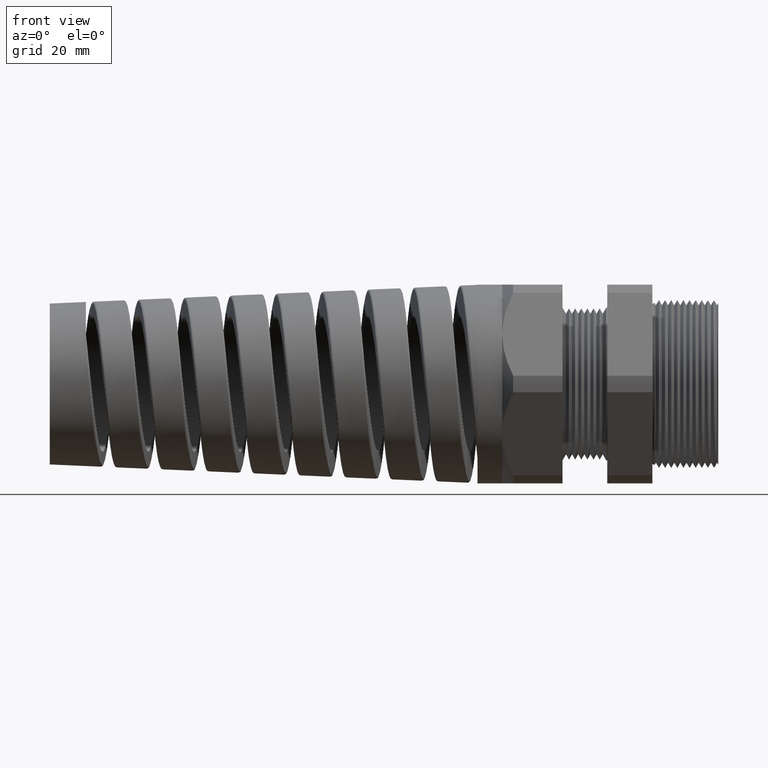
[diagram: clean part render]
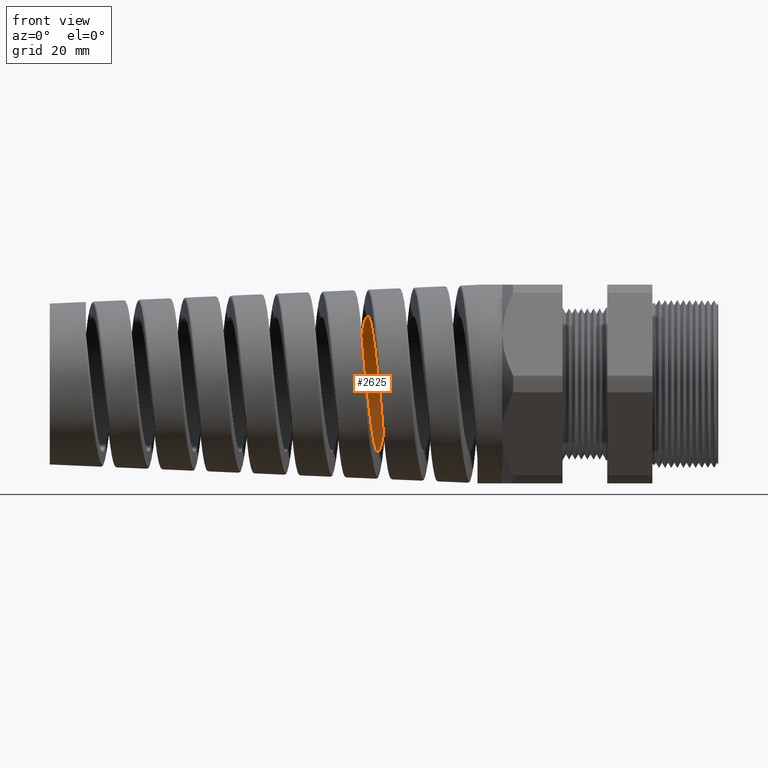
[diagram: same view with one face highlighted and labeled with its STEP entity id]
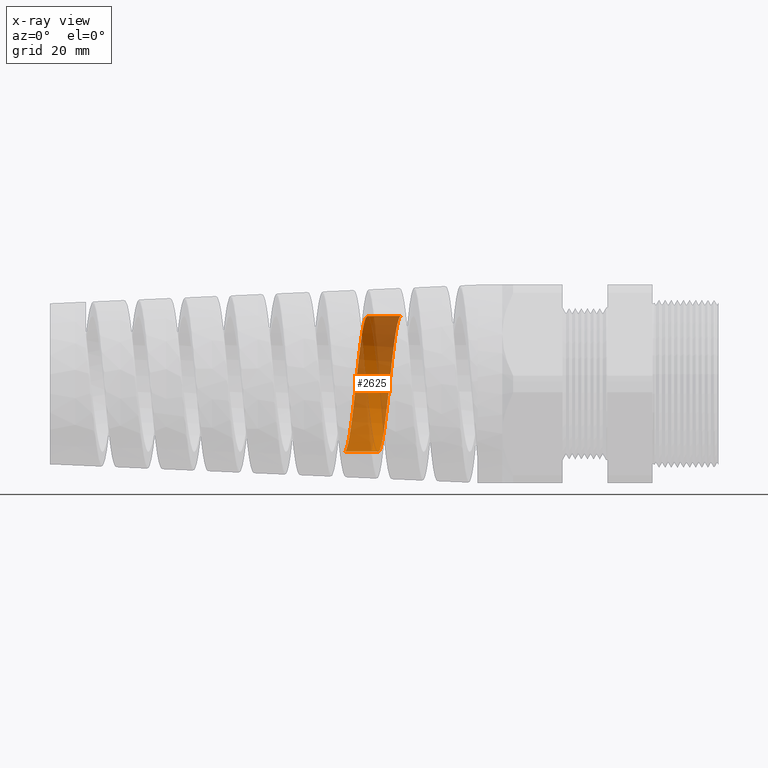
[diagram: x-ray of the same camera — body ghosted, the highlighted face saturated]
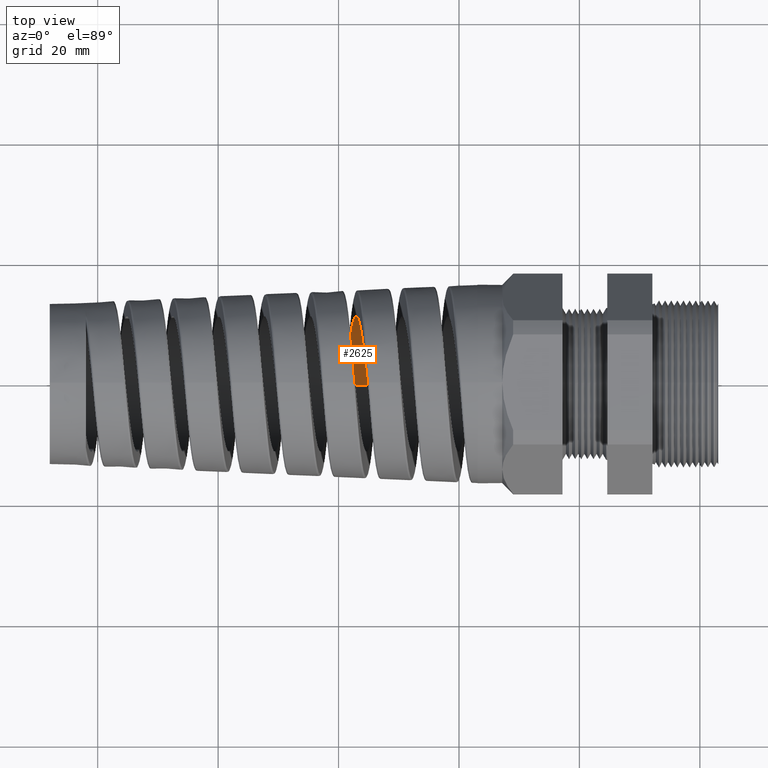
[diagram: same view with one face highlighted and labeled with its STEP entity id]
A machine part, front view. The second image highlights one B-rep face of the part: STEP entity #2625.
The next image is the same camera in x-ray: the body ghosted, the highlighted face saturated — about 66% of this face is hidden behind the body in this view.
A second angle (top view) of the same face is appended — the face is thin or edge-on in the first view.
In plain terms, the highlighted cylindrical surface (partial cylindrical patch) has radius 11.2776 mm, axis along (1, 0, 0).
Its self-contained STEP definition (entity closure, byte-faithful):
#2551 = ORIENTED_EDGE ( 'NONE', *, *, #2557, .T. ) ;
#2557 = EDGE_CURVE ( 'NONE', #3008, #10853, #13727, .T. ) ;
#2607 = ORIENTED_EDGE ( 'NONE', *, *, #2997, .T. ) ;
#2608 = ORIENTED_EDGE ( 'NONE', *, *, #10851, .F. ) ;
#2610 = EDGE_LOOP ( 'NONE', ( #2608, #2624, #2607, #2551 ) ) ;
#2623 = EDGE_CURVE ( 'NONE', #3005, #3011, #14245, .T. ) ;
#2624 = ORIENTED_EDGE ( 'NONE', *, *, #2623, .T. ) ;
#2625 = ADVANCED_FACE ( 'NONE', ( #14246 ), #14280, .F. ) ;
#2997 = EDGE_CURVE ( 'NONE', #3011, #3008, #15091, .T. ) ;
#3005 = VERTEX_POINT ( 'NONE', #15233 ) ;
#3008 = VERTEX_POINT ( 'NONE', #15232 ) ;
#3011 = VERTEX_POINT ( 'NONE', #15226 ) ;
#10851 = EDGE_CURVE ( 'NONE', #3005, #10853, #15746, .T. ) ;
#10853 = VERTEX_POINT ( 'NONE', #15742 ) ;
#13727 = B_SPLINE_CURVE_WITH_KNOTS ( 'NONE', 3,
 ( #13798, #13797, #13796, #13795, #13794, #13793, #13792, #13791, #13790, #13789, #13788, #13787, #13786, #13785, #13784, #13783, #13782, #13781, #13780, #13779, #13778, #13777, #13776, #13775, #13774, #13773, #13772, #13771, #13770, #13769, #13768, #13767, #13766, #13765, #13764, #13763, #13762, #13761, #13760, #13759, #13758, #13757, #13756, #13755, #13754, #13753, #13752, #13751, #13750 ),
 .UNSPECIFIED., .F., .F.,
 ( 4, 2, 2, 2, 2, 1, 2, 2, 2, 2, 2, 2, 2, 2, 2, 2, 2, 2, 2, 2, 2, 2, 2, 2, 4 ),
 ( 0.4508949924596080700, 0.4520022201944350300, 0.4531094479292620500, 0.4553239033989159900, 0.4564311311337430100, 0.4575383588685699700, 0.4586455866033969400, 0.4597528143382239600, 0.4619672698078778900, 0.4630744975427048500, 0.4641817252775318800, 0.4663961807471858100, 0.4675034084820127700, 0.4686106362168397900, 0.4708250916864937200, 0.4730395471561476600, 0.4741467748909746800, 0.4752540026258016400, 0.4774684580954555700, 0.4796829135651095600, 0.4818973690347634900, 0.4830045967695905100, 0.4841118245044174800, 0.4852190522392444400, 0.4863262799740714100 ),
 .UNSPECIFIED. ) ;
#13750 = CARTESIAN_POINT ( 'NONE',  ( -1.954224569084834600, -1.634840283708457500E-015, 0.4439999999999999500 ) ) ;
#13751 = CARTESIAN_POINT ( 'NONE',  ( -1.955799568948841200, 0.01464067485086755800, 0.4440000000000000100 ) ) ;
#13752 = CARTESIAN_POINT ( 'NONE',  ( -1.957371474852813300, 0.02925127854190748600, 0.4432728675889153200 ) ) ;
#13753 = CARTESIAN_POINT ( 'NONE',  ( -1.960493126645495200, 0.05812580872932383800, 0.4404178275188214700 ) ) ;
#13754 = CARTESIAN_POINT ( 'NONE',  ( -1.962048067804079700, 0.07243571784610519600, 0.4382900687251699000 ) ) ;
#13755 = CARTESIAN_POINT ( 'NONE',  ( -1.965160063072798800, 0.1008018064778384700, 0.4326477936772579700 ) ) ;
#13756 = CARTESIAN_POINT ( 'NONE',  ( -1.966717082816933100, 0.1148579948428069800, 0.4291333051762074000 ) ) ;
#13757 = CARTESIAN_POINT ( 'NONE',  ( -1.969848086289917300, 0.1427102852184782000, 0.4206917245247722700 ) ) ;
#13758 = CARTESIAN_POINT ( 'NONE',  ( -1.971430154742448600, 0.1565743859023796300, 0.4157317716623395400 ) ) ;
#13759 = CARTESIAN_POINT ( 'NONE',  ( -1.976134010379235800, 0.1969671270661320100, 0.3989858744569463900 ) ) ;
#13760 = CARTESIAN_POINT ( 'NONE',  ( -1.979231498128686900, 0.2224746649690359000, 0.3853325877447364400 ) ) ;
#13761 = CARTESIAN_POINT ( 'NONE',  ( -1.985469390087494000, 0.2706845404506003600, 0.3531374509906690100 ) ) ;
#13762 = CARTESIAN_POINT ( 'NONE',  ( -1.988636083784820500, 0.2935451290415507200, 0.3343771053785797900 ) ) ;
#13763 = CARTESIAN_POINT ( 'NONE',  ( -1.994874640838216300, 0.3345407966424953600, 0.2933585634802284300 ) ) ;
#13764 = CARTESIAN_POINT ( 'NONE',  ( -1.997971467019217700, 0.3529031645185649000, 0.2710056237927585000 ) ) ;
#13765 = CARTESIAN_POINT ( 'NONE',  ( -2.002673333640726700, 0.3771920362607553100, 0.2346792293644556800 ) ) ;
#13766 = CARTESIAN_POINT ( 'NONE',  ( -2.004256224197258800, 0.3847636775805541300, 0.2220471016313203300 ) ) ;
#13767 = CARTESIAN_POINT ( 'NONE',  ( -2.007389462415500000, 0.3984847703701422900, 0.1963616324826148200 ) ) ;
#13768 = CARTESIAN_POINT ( 'NONE',  ( -2.008946888051895500, 0.4046754551041528700, 0.1832564673691260400 ) ) ;
#13769 = CARTESIAN_POINT ( 'NONE',  ( -2.013614316504801900, 0.4212772300725300400, 0.1431716543449701700 ) ) ;
#13770 = CARTESIAN_POINT ( 'NONE',  ( -2.016725178195474500, 0.4297482091995241100, 0.1153745985587807700 ) ) ;
#13771 = CARTESIAN_POINT ( 'NONE',  ( -2.023030948325185400, 0.4411843052552154600, 0.05788980997784170400 ) ) ;
#13772 = CARTESIAN_POINT ( 'NONE',  ( -2.026134500752987400, 0.4439925876513605200, 0.02904695409377253800 ) ) ;
#13773 = CARTESIAN_POINT ( 'NONE',  ( -2.030803585003881900, 0.4440036844045562900, -0.01435319104060875700 ) ) ;
#13774 = CARTESIAN_POINT ( 'NONE',  ( -2.032362216050779000, 0.4433020694080057100, -0.02884271861368025600 ) ) ;
#13775 = CARTESIAN_POINT ( 'NONE',  ( -2.035499466544286000, 0.4404543752598049600, -0.05786683396336026600 ) ) ;
#13776 = CARTESIAN_POINT ( 'NONE',  ( -2.037081184572070200, 0.4382941383032938900, -0.07242819386025135800 ) ) ;
#13777 = CARTESIAN_POINT ( 'NONE',  ( -2.041776037963352500, 0.4297732963340978900, -0.1152271387550041100 ) ) ;
#13778 = CARTESIAN_POINT ( 'NONE',  ( -2.044873397646561000, 0.4213752361407364100, -0.1429030021039637000 ) ) ;
#13779 = CARTESIAN_POINT ( 'NONE',  ( -2.049557286104224400, 0.4047336270070849300, -0.1831318666437838600 ) ) ;
#13780 = CARTESIAN_POINT ( 'NONE',  ( -2.051130900194150900, 0.3984806998045222200, -0.1963752922448563100 ) ) ;
#13781 = CARTESIAN_POINT ( 'NONE',  ( -2.054279174499550100, 0.3846861191727077900, -0.2221862129764032900 ) ) ;
#13782 = CARTESIAN_POINT ( 'NONE',  ( -2.055841327047421600, 0.3772050179596841400, -0.2346531754916217600 ) ) ;
#13783 = CARTESIAN_POINT ( 'NONE',  ( -2.060515371496343100, 0.3530650664165499400, -0.2707766833487470500 ) ) ;
#13784 = CARTESIAN_POINT ( 'NONE',  ( -2.063614736379116200, 0.3347253958266172600, -0.2931677964753076100 ) ) ;
#13785 = CARTESIAN_POINT ( 'NONE',  ( -2.068326891038294100, 0.3037707973642999600, -0.3241487537289408600 ) ) ;
#13786 = CARTESIAN_POINT ( 'NONE',  ( -2.069906914138675000, 0.2928753464626954200, -0.3340228282433090900 ) ) ;
#13787 = CARTESIAN_POINT ( 'NONE',  ( -2.073033836496449100, 0.2704048388013340900, -0.3524605531206684300 ) ) ;
#13788 = CARTESIAN_POINT ( 'NONE',  ( -2.076145185056108600, 0.2471421677839113200, -0.3697065898658532500 ) ) ;
#13789 = CARTESIAN_POINT ( 'NONE',  ( -2.079255748269814000, 0.2223218576289206200, -0.3846035608781016600 ) ) ;
#13790 = CARTESIAN_POINT ( 'NONE',  ( -2.082380621908882300, 0.1967138030144698900, -0.3983096623523890200 ) ) ;
#13791 = CARTESIAN_POINT ( 'NONE',  ( -2.083958460176200700, 0.1834465325605341400, -0.4045947893235592500 ) ) ;
#13792 = CARTESIAN_POINT ( 'NONE',  ( -2.088675948256666400, 0.1429427286767547800, -0.4213759268675386600 ) ) ;
#13793 = CARTESIAN_POINT ( 'NONE',  ( -2.091775558583324200, 0.1152314530737682700, -0.4297627262430930900 ) ) ;
#13794 = CARTESIAN_POINT ( 'NONE',  ( -2.096447502675715200, 0.07264035592270844100, -0.4382567179779098300 ) ) ;
#13795 = CARTESIAN_POINT ( 'NONE',  ( -2.098008521679081400, 0.05827140441695244400, -0.4404021735447771800 ) ) ;
#13796 = CARTESIAN_POINT ( 'NONE',  ( -2.101153439402885700, 0.02918126447219179800, -0.4432810449810505900 ) ) ;
#13797 = CARTESIAN_POINT ( 'NONE',  ( -2.102730696102211600, 0.01452141969371526800, -0.4439999999999997800 ) ) ;
#13798 = CARTESIAN_POINT ( 'NONE',  ( -2.104293233422813300, 8.771793167156347300E-016, -0.4440000000000002300 ) ) ;
#14239 = CARTESIAN_POINT ( 'NONE',  ( -2.185718290852038900, 0.1153503974671693900, 0.4297394222022687900 ) ) ;
#14240 = CARTESIAN_POINT ( 'NONE',  ( -2.181029346306306400, 0.07257169407382567400, 0.4382702026340583000 ) ) ;
#14241 = CARTESIAN_POINT ( 'NONE',  ( -2.179449386996739100, 0.05801810639292912700, 0.4404348935290197100 ) ) ;
#14242 = CARTESIAN_POINT ( 'NONE',  ( -2.176311630609539800, 0.02896971965595328300, 0.4432942041696413800 ) ) ;
#14243 = CARTESIAN_POINT ( 'NONE',  ( -2.174753284893850700, 0.01447170116300913400, 0.4440000000000006700 ) ) ;
#14244 = CARTESIAN_POINT ( 'NONE',  ( -2.173197847233972800, -2.163495555607393300E-014, 0.4439999999999998400 ) ) ;
#14245 = B_SPLINE_CURVE_WITH_KNOTS ( 'NONE', 3,
 ( #14244, #14243, #14242, #14241, #14240, #14239, #14324, #14323, #14322, #14321, #14320, #14319, #14318, #14317, #14316, #14315, #14314, #14313, #14312, #14311, #14310, #14309, #14308, #14307, #14306, #14305, #14304, #14303, #14302, #14301, #14300, #14299, #14298, #14297, #14296, #14295, #14294, #14293, #14292, #14291, #14290, #14289, #14288, #14287, #14286, #14285, #14284, #14283 ),
 .UNSPECIFIED., .F., .F.,
 ( 4, 2, 2, 2, 2, 2, 2, 2, 2, 2, 2, 2, 2, 2, 2, 2, 2, 2, 2, 2, 2, 2, 2, 4 ),
 ( 0.1900417886321010800, 0.1911501021133308300, 0.1922584155945606100, 0.1944750425570201100, 0.1955833560382498900, 0.1966916695194796400, 0.1989082964819391700, 0.2000166099631689200, 0.2011249234443986700, 0.2022332369256284500, 0.2033415504068582000, 0.2055581773693177200, 0.2066664908505474700, 0.2077748043317772200, 0.2099914312942367500, 0.2110997447754665000, 0.2122080582566962500, 0.2144246852191557500, 0.2166413121816152800, 0.2177496256628450300, 0.2188579391440747800, 0.2210745661065342800, 0.2232911930689938100, 0.2255078200314533100 ),
 .UNSPECIFIED. ) ;
#14246 = FACE_OUTER_BOUND ( 'NONE', #2610, .T. ) ;
#14276 = DIRECTION ( 'NONE',  ( 0.0000000000000000000, 0.0000000000000000000, -1.000000000000000000 ) ) ;
#14277 = DIRECTION ( 'NONE',  ( 1.000000000000000000, 0.0000000000000000000, 0.0000000000000000000 ) ) ;
#14278 = CARTESIAN_POINT ( 'NONE',  ( 0.09602717987635048200, 0.0000000000000000000, 0.0000000000000000000 ) ) ;
#14279 = AXIS2_PLACEMENT_3D ( 'NONE', #14278, #14277, #14276 ) ;
#14280 = CYLINDRICAL_SURFACE ( 'NONE', #14279, 0.4439999999999999500 ) ;
#14283 = CARTESIAN_POINT ( 'NONE',  ( -2.323129735990867600, 9.326699790869396800E-016, -0.4439999999999996700 ) ) ;
#14284 = CARTESIAN_POINT ( 'NONE',  ( -2.319996141930374700, 0.02914919658354740700, -0.4439999999999996200 ) ) ;
#14285 = CARTESIAN_POINT ( 'NONE',  ( -2.316900784519204200, 0.05794415651498636300, -0.4411565858343121600 ) ) ;
#14286 = CARTESIAN_POINT ( 'NONE',  ( -2.310668338610368800, 0.1148242714203818500, -0.4298744528254715400 ) ) ;
#14287 = CARTESIAN_POINT ( 'NONE',  ( -2.307504424542826400, 0.1431310744069110000, -0.4212960198875999600 ) ) ;
#14288 = CARTESIAN_POINT ( 'NONE',  ( -2.301270336368933700, 0.1967105105494018900, -0.3991012601751632300 ) ) ;
#14289 = CARTESIAN_POINT ( 'NONE',  ( -2.298174684587514600, 0.2222380286747060700, -0.3854810080815685400 ) ) ;
#14290 = CARTESIAN_POINT ( 'NONE',  ( -2.293476114816027900, 0.2585988417458192600, -0.3612132006072332800 ) ) ;
#14291 = CARTESIAN_POINT ( 'NONE',  ( -2.291894988231436800, 0.2704313026663615100, -0.3524413294023878200 ) ) ;
#14292 = CARTESIAN_POINT ( 'NONE',  ( -2.288765308074025600, 0.2929398470134248500, -0.3339674028471921200 ) ) ;
#14293 = CARTESIAN_POINT ( 'NONE',  ( -2.287209271670447300, 0.3036768350119512000, -0.3242307641329074700 ) ) ;
#14294 = CARTESIAN_POINT ( 'NONE',  ( -2.282545142441438900, 0.3343645249899908100, -0.2935527185371599700 ) ) ;
#14295 = CARTESIAN_POINT ( 'NONE',  ( -2.279433225495331800, 0.3528476181471503200, -0.2710961498878394800 ) ) ;
#14296 = CARTESIAN_POINT ( 'NONE',  ( -2.273134271037925600, 0.3854137037692216800, -0.2223754506752435600 ) ) ;
#14297 = CARTESIAN_POINT ( 'NONE',  ( -2.270034831563298100, 0.3990510190214598400, -0.1968039712506153000 ) ) ;
#14298 = CARTESIAN_POINT ( 'NONE',  ( -2.265368904312449000, 0.4156788882622112200, -0.1567049506991132200 ) ) ;
#14299 = CARTESIAN_POINT ( 'NONE',  ( -2.263811023771945800, 0.4205788787069133000, -0.1430461813814764800 ) ) ;
#14300 = CARTESIAN_POINT ( 'NONE',  ( -2.260674603592729000, 0.4290613793819987900, -0.1151309512902734400 ) ) ;
#14301 = CARTESIAN_POINT ( 'NONE',  ( -2.259094031007000700, 0.4326388834960310200, -0.1008522134497265900 ) ) ;
#14302 = CARTESIAN_POINT ( 'NONE',  ( -2.254403430734023100, 0.4411486036985665100, -0.05805341795631394800 ) ) ;
#14303 = CARTESIAN_POINT ( 'NONE',  ( -2.251309747606919000, 0.4439846655109716500, -0.02926663523575933800 ) ) ;
#14304 = CARTESIAN_POINT ( 'NONE',  ( -2.246628963535199000, 0.4440075750913830000, 0.01428296356496134600 ) ) ;
#14305 = CARTESIAN_POINT ( 'NONE',  ( -2.245055467376957400, 0.4432984634965076400, 0.02892283365099734800 ) ) ;
#14306 = CARTESIAN_POINT ( 'NONE',  ( -2.241910045863323200, 0.4404327383579863000, 0.05804361314781758500 ) ) ;
#14307 = CARTESIAN_POINT ( 'NONE',  ( -2.240348904312274400, 0.4382927648096062700, 0.07242382476830772100 ) ) ;
#14308 = CARTESIAN_POINT ( 'NONE',  ( -2.235678195063838500, 0.4298154467424781800, 0.1150378809594511900 ) ) ;
#14309 = CARTESIAN_POINT ( 'NONE',  ( -2.232581813536886900, 0.4214399342276885000, 0.1427501342623691000 ) ) ;
#14310 = CARTESIAN_POINT ( 'NONE',  ( -2.227872656276956400, 0.4046895087808343700, 0.1832367491284641300 ) ) ;
#14311 = CARTESIAN_POINT ( 'NONE',  ( -2.226294457479877800, 0.3984029320501825700, 0.1965255753565207900 ) ) ;
#14312 = CARTESIAN_POINT ( 'NONE',  ( -2.223170289993891700, 0.3846989332584616100, 0.2221574414355632400 ) ) ;
#14313 = CARTESIAN_POINT ( 'NONE',  ( -2.221615577186181900, 0.3772523602554722100, 0.2345757705577001000 ) ) ;
#14314 = CARTESIAN_POINT ( 'NONE',  ( -2.218506283777994100, 0.3611882449710794300, 0.2586275065529087800 ) ) ;
#14315 = CARTESIAN_POINT ( 'NONE',  ( -2.216951855552540700, 0.3525706906782948300, 0.2702609251875901000 ) ) ;
#14316 = CARTESIAN_POINT ( 'NONE',  ( -2.213828752865981900, 0.3341493365217709800, 0.2927307303832008500 ) ) ;
#14317 = CARTESIAN_POINT ( 'NONE',  ( -2.212251768155368400, 0.3242897072792068100, 0.3036209752476498000 ) ) ;
#14318 = CARTESIAN_POINT ( 'NONE',  ( -2.207540399058462100, 0.2932931603873286100, 0.3346179395972114800 ) ) ;
#14319 = CARTESIAN_POINT ( 'NONE',  ( -2.204443449518581000, 0.2708986004768881300, 0.3529712208992092900 ) ) ;
#14320 = CARTESIAN_POINT ( 'NONE',  ( -2.199773439711088400, 0.2347883572527853000, 0.3771208174171668000 ) ) ;
#14321 = CARTESIAN_POINT ( 'NONE',  ( -2.198212891730335200, 0.2223288761679040000, 0.3846033142843684500 ) ) ;
#14322 = CARTESIAN_POINT ( 'NONE',  ( -2.195069110140427600, 0.1965405602827431900, 0.3983988537889501800 ) ) ;
#14323 = CARTESIAN_POINT ( 'NONE',  ( -2.193494101713302900, 0.1832763119887882200, 0.4046685673294034800 ) ) ;
#14324 = CARTESIAN_POINT ( 'NONE',  ( -2.188812077882599000, 0.1430275965479906600, 0.4213342263670013500 ) ) ;
#15090 = CARTESIAN_POINT ( 'NONE',  ( 0.09602717987635048200, 0.0000000000000000000, -0.4439999999999999500 ) ) ;
#15091 = LINE ( 'NONE', #15090, #15177 ) ;
#15176 = DIRECTION ( 'NONE',  ( 1.000000000000000000, 0.0000000000000000000, 0.0000000000000000000 ) ) ;
#15177 = VECTOR ( 'NONE', #15176, 39.37007874015748100 ) ;
#15226 = CARTESIAN_POINT ( 'NONE',  ( -2.323129735990867600, 9.326699790869396800E-016, -0.4439999999999996700 ) ) ;
#15232 = CARTESIAN_POINT ( 'NONE',  ( -2.104293233422813300, 8.771793167156347300E-016, -0.4440000000000002300 ) ) ;
#15233 = CARTESIAN_POINT ( 'NONE',  ( -2.173197847233972800, -2.163495555607393300E-014, 0.4439999999999998400 ) ) ;
#15742 = CARTESIAN_POINT ( 'NONE',  ( -1.954224569084834600, -1.634840283708457500E-015, 0.4439999999999999500 ) ) ;
#15743 = DIRECTION ( 'NONE',  ( 1.000000000000000000, 0.0000000000000000000, 0.0000000000000000000 ) ) ;
#15744 = VECTOR ( 'NONE', #15743, 39.37007874015748100 ) ;
#15745 = CARTESIAN_POINT ( 'NONE',  ( 0.09602717987635048200, 5.437431788214247900E-017, 0.4439999999999999500 ) ) ;
#15746 = LINE ( 'NONE', #15745, #15744 ) ;